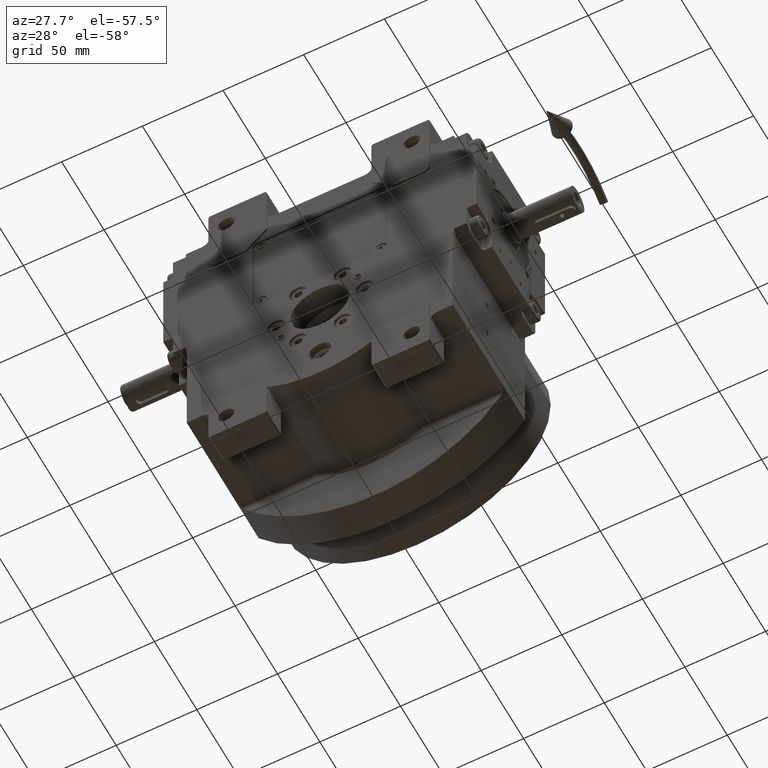
[diagram: clean part render]
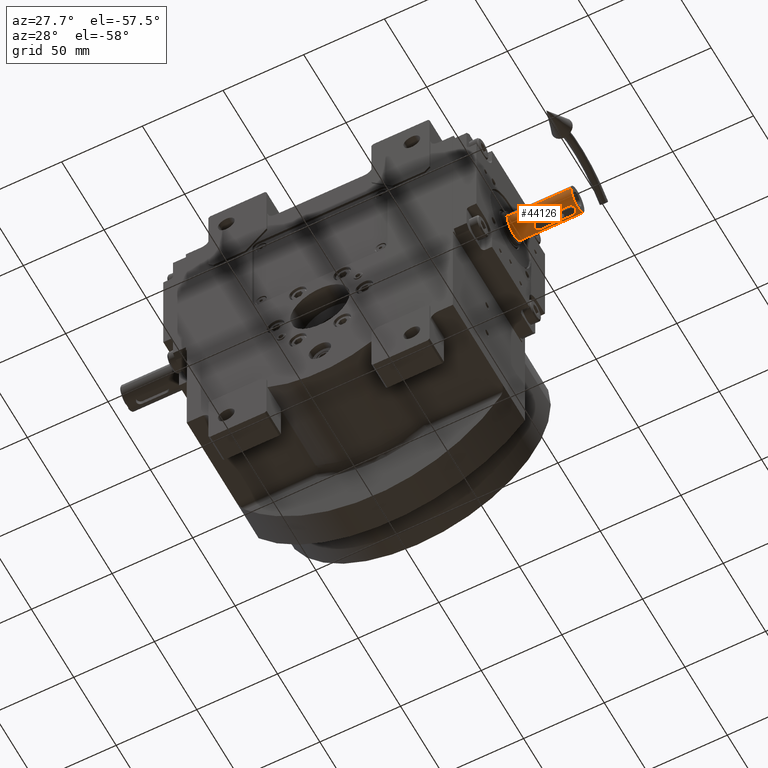
[diagram: same view with one face highlighted and labeled with its STEP entity id]
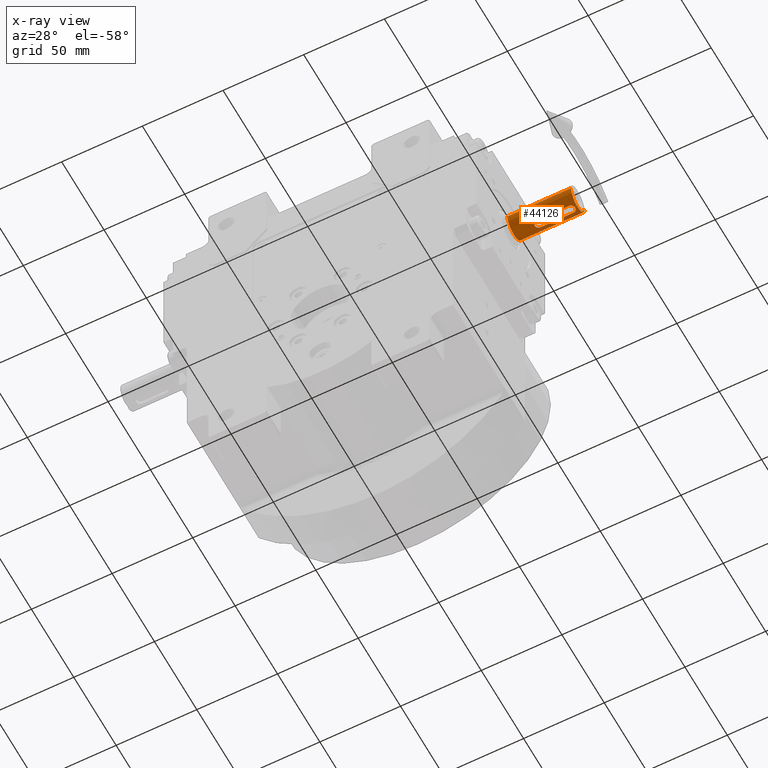
[diagram: x-ray of the same camera — body ghosted, the highlighted face saturated]
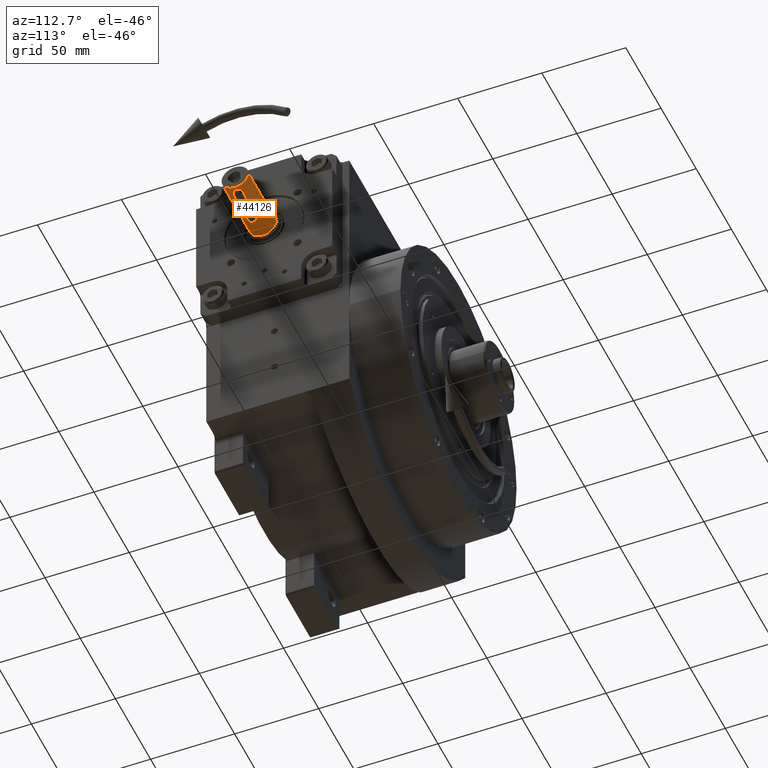
[diagram: same view with one face highlighted and labeled with its STEP entity id]
A machine part, auxiliary view. The second image highlights one B-rep face of the part: STEP entity #44126.
The next image is the same camera in x-ray: the body ghosted, the highlighted face saturated — about 0% of this face is hidden behind the body in this view.
A second angle (auxiliary view) of the same face is appended — the face is thin or edge-on in the first view.
In plain terms, the highlighted cylindrical surface (edge-blend (fillet) strip) has radius 8 mm, axis along (-1, -0, -0).
Its self-contained STEP definition (entity closure, byte-faithful):
#103 = CARTESIAN_POINT ( 'NONE',  ( -1.193536086755146552, -79.29726996681930018, 7.910995325772347542 ) ) ;
#475 = CARTESIAN_POINT ( 'NONE',  ( -2.281394066029696521, -80.47752146100458503, 7.667699380447078994 ) ) ;
#568 = LINE ( 'NONE', #60715, #8069 ) ;
#1038 = CARTESIAN_POINT ( 'NONE',  ( 1.693420889178526734, -103.3392869773679195, 7.818701621006993285 ) ) ;
#1438 = VECTOR ( 'NONE', #19400, 1000.000000000000000 ) ;
#1526 = CARTESIAN_POINT ( 'NONE',  ( -1.674829783585233711, -79.64377826720813403, 7.822663933521255331 ) ) ;
#3261 = CARTESIAN_POINT ( 'NONE',  ( 4.385751536967839378E-11, -103.9999999999955804, 7.999999999999861444 ) ) ;
#3602 = CARTESIAN_POINT ( 'NONE',  ( -8.000000000000000000, -105.4999999999999858, 4.718447854656915297E-13 ) ) ;
#4119 = CARTESIAN_POINT ( 'NONE',  ( 0.9672227922674325740, -79.19468146776318918, 7.941279732590558638 ) ) ;
#4130 = CARTESIAN_POINT ( 'NONE',  ( -2.082829102350947537, -102.8850916564722979, 7.725106330460701720 ) ) ;
#4233 = CIRCLE ( 'NONE', #61738, 8.000000000000000000 ) ;
#4459 = CARTESIAN_POINT ( 'NONE',  ( 1.103304673860914242, -79.25635695696503547, 7.923293706110199786 ) ) ;
#4471 = CARTESIAN_POINT ( 'NONE',  ( -1.786310813231841266, -103.2492233111073290, 7.798083872374340864 ) ) ;
#4543 = CARTESIAN_POINT ( 'NONE',  ( 2.499999999999940936, -81.49999999999998579, 7.599342076785330136 ) ) ;
#4822 = CARTESIAN_POINT ( 'NONE',  ( 1.469426811532487331, -79.47087880693784712, 7.864377077441826458 ) ) ;
#5033 = CARTESIAN_POINT ( 'NONE',  ( 0.9256327576328476914, -103.8223708385404223, 7.946252027353327030 ) ) ;
#5395 = CARTESIAN_POINT ( 'NONE',  ( 2.281394072897048986, -102.5224785235288039, 7.667699372738709940 ) ) ;
#5526 = CARTESIAN_POINT ( 'NONE',  ( -0.9571700192519240202, -79.19048951727212682, 7.942501018822831327 ) ) ;
#6088 = CARTESIAN_POINT ( 'NONE',  ( 0.9571699627064931271, -103.8095105061650685, 7.942501022636291097 ) ) ;
#6457 = CARTESIAN_POINT ( 'NONE',  ( 0.8205494057223792215, -103.8621775848404809, 7.957928993530587469 ) ) ;
#6944 = CARTESIAN_POINT ( 'NONE',  ( -8.881784197000859865E-16, -66.09999999999999432, 0.000000000000000000 ) ) ;
#8069 = VECTOR ( 'NONE', #66103, 1000.000000000000000 ) ;
#8242 = LINE ( 'NONE', #52181, #1438 ) ;
#9175 = CARTESIAN_POINT ( 'NONE',  ( -2.032618819128723331, -102.9586770806716061, 7.738482214712814944 ) ) ;
#9521 = CARTESIAN_POINT ( 'NONE',  ( 1.943922035151667060, -79.92726777720167775, 7.760753477608757223 ) ) ;
#9888 = CARTESIAN_POINT ( 'NONE',  ( 0.9654889590629880392, -79.19395140777740494, 7.941492741751970286 ) ) ;
#10234 = CARTESIAN_POINT ( 'NONE',  ( 2.433768593788085077, -80.92250430396407523, 7.621939950903770189 ) ) ;
#10249 = CARTESIAN_POINT ( 'NONE',  ( -1.860789053244774394, -103.1697712729408067, 7.780784497345397455 ) ) ;
#10659 = ORIENTED_EDGE ( 'NONE', *, *, #30567, .T. ) ;
#10951 = CARTESIAN_POINT ( 'NONE',  ( 2.316189119986132194, -80.55910011815062433, 7.657166291048785212 ) ) ;
#11300 = DIRECTION ( 'NONE',  ( 1.000000000000000000, 0.000000000000000000, -7.549516567451064475E-15 ) ) ;
#12000 = CARTESIAN_POINT ( 'NONE',  ( -2.168659579177117269, -80.25357648016696999, 7.701311984265567290 ) ) ;
#12341 = VERTEX_POINT ( 'NONE', #3602 ) ;
#12359 = CARTESIAN_POINT ( 'NONE',  ( -8.000000000000058620, -66.09999999999999432, 3.480229993080286022E-09 ) ) ;
#12418 = EDGE_CURVE ( 'NONE', #58932, #30668, #38431, .T. ) ;
#13088 = VERTEX_POINT ( 'NONE', #69321 ) ;
#14924 = CARTESIAN_POINT ( 'NONE',  ( -2.500000000000059064, -101.5000000000000000, 7.599342076785330136 ) ) ;
#15270 = CARTESIAN_POINT ( 'NONE',  ( 1.786310771109922646, -79.75077664594313376, 7.798083882303000536 ) ) ;
#15641 = CARTESIAN_POINT ( 'NONE',  ( 2.378121920320453331, -80.72788381417946368, 7.638611844260635664 ) ) ;
#15653 = CARTESIAN_POINT ( 'NONE',  ( -0.6420507535615088690, -103.9406460026054617, 7.980698606383389127 ) ) ;
#15982 = CARTESIAN_POINT ( 'NONE',  ( 2.482707356171685031, -81.16371504373712753, 7.606916456933628723 ) ) ;
#16193 = CARTESIAN_POINT ( 'NONE',  ( 2.249329146587029982, -102.5916207879226505, 7.677433120866432148 ) ) ;
#16326 = CARTESIAN_POINT ( 'NONE',  ( 1.073217807602770524, -79.24185413649863108, 7.927505834357019054 ) ) ;
#16549 = CARTESIAN_POINT ( 'NONE',  ( 1.472239342304378695, -103.5226722468600116, 7.863100564355688604 ) ) ;
#16694 = CARTESIAN_POINT ( 'NONE',  ( -1.582158772954930459, -79.56378034752201245, 7.841748874047701712 ) ) ;
#16902 = CARTESIAN_POINT ( 'NONE',  ( 2.262901976323559161, -102.5630896637919705, 7.673319054273621376 ) ) ;
#17043 = CARTESIAN_POINT ( 'NONE',  ( -2.500000000000057732, -81.16084879098656302, 7.602765040137517971 ) ) ;
#17601 = CARTESIAN_POINT ( 'NONE',  ( 2.430346878768983032, -102.1663473157102686, 7.622796429069606639 ) ) ;
#18613 = CIRCLE ( 'NONE', #34741, 8.000000000000000000 ) ;
#19400 = DIRECTION ( 'NONE',  ( 4.190823558986625216E-31, -1.000000000000000000, -8.381647117973250432E-31 ) ) ;
#19971 = CARTESIAN_POINT ( 'NONE',  ( -1.262573481225518268, -103.6592927539918207, 7.899329246347272182 ) ) ;
#20333 = CARTESIAN_POINT ( 'NONE',  ( -2.359042043660062316, -102.3292874808928730, 7.644314101199695344 ) ) ;
#20677 = CARTESIAN_POINT ( 'NONE',  ( -1.029707664918057208, -103.7781476961735336, 7.933340056381185335 ) ) ;
#21397 = CARTESIAN_POINT ( 'NONE',  ( -0.9505549066143478276, -79.18775555938861999, 7.943297617279680978 ) ) ;
#21597 = CARTESIAN_POINT ( 'NONE',  ( 1.924781711887133984, -103.1107540319521405, 7.766715037473525207 ) ) ;
#21731 = CARTESIAN_POINT ( 'NONE',  ( 2.268657162229624991, -80.44451192643947479, 7.671471542138300848 ) ) ;
#22070 = CARTESIAN_POINT ( 'NONE',  ( -1.400394583862462961, -79.42743347347918359, 7.876043153365933414 ) ) ;
#22295 = CARTESIAN_POINT ( 'NONE',  ( 0.5583251389089862737, -103.9382416998807912, 7.980698606350797419 ) ) ;
#22802 = FACE_BOUND ( 'NONE', #70069, .T. ) ;
#22995 = CARTESIAN_POINT ( 'NONE',  ( 0.1561144705904800034, -104.0000000000000426, 7.999999999999721112 ) ) ;
#23113 = CARTESIAN_POINT ( 'NONE',  ( 1.619150600551501284, -103.4054676677428688, 7.834308685338374545 ) ) ;
#23492 = CARTESIAN_POINT ( 'NONE',  ( -1.693420934586983728, -79.66071306435800636, 7.818701610350914599 ) ) ;
#25095 = LINE ( 'NONE', #30160, #45964 ) ;
#25168 = CARTESIAN_POINT ( 'NONE',  ( -2.500000000000059064, -101.5000000000000000, 7.599342076785330136 ) ) ;
#25377 = CARTESIAN_POINT ( 'NONE',  ( -0.9672228224972546640, -103.8053185195523014, 7.941279730866205533 ) ) ;
#25737 = CARTESIAN_POINT ( 'NONE',  ( -1.843069743752224099, -103.1893236906983304, 7.784956258549314612 ) ) ;
#26090 = CARTESIAN_POINT ( 'NONE',  ( -0.6391695085848929647, -79.08162164491187696, 7.974670843423046662 ) ) ;
#26434 = CARTESIAN_POINT ( 'NONE',  ( -0.7601371585158862576, -79.11799152341782815, 7.963812738570663186 ) ) ;
#26443 = CARTESIAN_POINT ( 'NONE',  ( -1.196502426440146927, -103.6961883285299848, 7.909689382643857236 ) ) ;
#26800 = CARTESIAN_POINT ( 'NONE',  ( -2.500000000000056843, -101.6695345930383922, 7.601053091262475192 ) ) ;
#27488 = CARTESIAN_POINT ( 'NONE',  ( 1.008357150952980064, -79.21228962897187387, 7.936136175550116079 ) ) ;
#27694 = CARTESIAN_POINT ( 'NONE',  ( 2.499999999999940936, -101.5000000000000000, 7.599342076785330136 ) ) ;
#27830 = CARTESIAN_POINT ( 'NONE',  ( -2.306742151783229833, -80.53617158843385937, 7.660008567906841925 ) ) ;
#28057 = CARTESIAN_POINT ( 'NONE',  ( 2.306742137515195967, -102.4638284456816137, 7.660008568000876039 ) ) ;
#28099 = VERTEX_POINT ( 'NONE', #48659 ) ;
#28421 = CARTESIAN_POINT ( 'NONE',  ( 1.748128468984884387, -103.2874052071413615, 7.806733652958830483 ) ) ;
#28563 = FACE_OUTER_BOUND ( 'NONE', #29496, .T. ) ;
#29420 = ORIENTED_EDGE ( 'NONE', *, *, #12418, .F. ) ;
#29496 = EDGE_LOOP ( 'NONE', ( #10659, #54955, #63411, #58919 ) ) ;
#30160 = CARTESIAN_POINT ( 'NONE',  ( 7.999999999999941380, -66.09999999999999432, 0.000000000000000000 ) ) ;
#30567 = EDGE_CURVE ( 'NONE', #57959, #12341, #568, .T. ) ;
#30668 = VERTEX_POINT ( 'NONE', #68604 ) ;
#31158 = CARTESIAN_POINT ( 'NONE',  ( -1.943922020714325072, -103.0727322403290032, 7.760753481466689863 ) ) ;
#31521 = CARTESIAN_POINT ( 'NONE',  ( -2.211639328035646113, -102.6769772081063223, 7.689393558455803301 ) ) ;
#31867 = CARTESIAN_POINT ( 'NONE',  ( 0.6420978377273386384, -79.05937359642163642, 7.980692895796773101 ) ) ;
#31878 = CARTESIAN_POINT ( 'NONE',  ( -1.912125993829055792, -103.1113541516930212, 7.768545143780600348 ) ) ;
#31940 = CARTESIAN_POINT ( 'NONE',  ( -2.500000000000059064, -81.49999999999998579, 7.599342076785330136 ) ) ;
#32210 = CARTESIAN_POINT ( 'NONE',  ( 1.860789045275194065, -79.83022871806322485, 7.780784499347880967 ) ) ;
#32922 = CARTESIAN_POINT ( 'NONE',  ( -0.8906645423323646948, -79.16386607656249907, 7.950277459945179537 ) ) ;
#33120 = CARTESIAN_POINT ( 'NONE',  ( 1.400394581815527451, -103.5725665278173153, 7.876043154077078334 ) ) ;
#33265 = CARTESIAN_POINT ( 'NONE',  ( -2.299652578068977160, -80.51934854338620084, 7.662151317218252267 ) ) ;
#33477 = VERTEX_POINT ( 'NONE', #25168 ) ;
#33690 = ORIENTED_EDGE ( 'NONE', *, *, #49483, .F. ) ;
#33995 = CARTESIAN_POINT ( 'NONE',  ( -2.500000000000059064, -81.49999999999998579, 7.599342076785330136 ) ) ;
#34345 = CARTESIAN_POINT ( 'NONE',  ( -2.204339293450602533, -80.31874706351443649, 7.690878176541283473 ) ) ;
#34741 = AXIS2_PLACEMENT_3D ( 'NONE', #49918, #50957, #66807 ) ;
#34770 = CARTESIAN_POINT ( 'NONE',  ( 8.000000000000000000, -105.4999999999999858, 0.000000000000000000 ) ) ;
#37272 = CARTESIAN_POINT ( 'NONE',  ( -0.3122289411811399740, -104.0000000000000000, 7.999999999999714007 ) ) ;
#37621 = CARTESIAN_POINT ( 'NONE',  ( 2.321781611066197737, -80.57290622878713293, 7.655485258560554840 ) ) ;
#37958 = CARTESIAN_POINT ( 'NONE',  ( 0.3121782513797797809, -79.00000002186203574, 7.999994292076687330 ) ) ;
#37970 = CARTESIAN_POINT ( 'NONE',  ( -2.482707383844117377, -101.8362847497630810, 7.606916429779082556 ) ) ;
#38030 = LINE ( 'NONE', #31940, #60986 ) ;
#38165 = CARTESIAN_POINT ( 'NONE',  ( 2.499999999999941824, -101.8391516377785280, 7.602765096812797552 ) ) ;
#38298 = CARTESIAN_POINT ( 'NONE',  ( -0.5582878383232166009, -79.06174975841844343, 7.980702886066490365 ) ) ;
#38431 = B_SPLINE_CURVE_WITH_KNOTS ( 'NONE', 3,
 ( #3261, #22995, #65524, #22295, #61548, #50389, #6457, #55090, #5033, #39593, #38878, #6088, #49335, #43925, #33120, #16549, #66236, #23113, #70919, #1038, #55448, #28421, #21597, #43573, #44963, #48994, #16193, #16902, #5395, #66925, #44283, #60831, #54389, #28057, #17601, #38165, #27694 ),
 .UNSPECIFIED., .F., .F.,
 ( 4, 2, 2, 1, 1, 1, 2, 2, 2, 2, 2, 2, 2, 2, 2, 2, 1, 1, 2, 2, 4 ),
 ( 0.5000000000000000000, 0.5625000000000380806, 0.5937500000000571765, 0.6093750000000667244, 0.6171875000000706102, 0.6210937500000716094, 0.6230468750000721645, 0.6250000000000726086, 0.6875000000000647260, 0.7187500000000593969, 0.7343750000000566214, 0.7421875000000538458, 0.7500000000000510703, 0.8125000000000206501, 0.8437500000000053291, 0.8593749999999977796, 0.8671874999999940048, 0.8710937499999955591, 0.8730468750000000000, 0.8750000000000044409, 1.000000000000000000 ),
 .UNSPECIFIED. ) ;
#38448 = ORIENTED_EDGE ( 'NONE', *, *, #51184, .F. ) ;
#38676 = CARTESIAN_POINT ( 'NONE',  ( -2.039842226443633777, -80.04546655734041849, 7.737024747556470849 ) ) ;
#38878 = CARTESIAN_POINT ( 'NONE',  ( 0.9505563138213262153, -103.8122438603152915, 7.943297443901697008 ) ) ;
#39020 = DIRECTION ( 'NONE',  ( -7.124400050277262868E-30, -1.000000000000000000, 1.002546245711064011E-15 ) ) ;
#39593 = CARTESIAN_POINT ( 'NONE',  ( 0.9405903361060233836, -103.8163157804874857, 7.944484931987523701 ) ) ;
#39735 = CARTESIAN_POINT ( 'NONE',  ( -1.924781681136906286, -79.88924594813119029, 7.766715043241154248 ) ) ;
#41965 = CARTESIAN_POINT ( 'NONE',  ( -1.806370105743889232, -103.2285102410354085, 7.793483734321799083 ) ) ;
#42315 = CARTESIAN_POINT ( 'NONE',  ( -0.9739860630258384555, -103.8024692427873532, 7.940448518515797360 ) ) ;
#42658 = CARTESIAN_POINT ( 'NONE',  ( 1.029707647488325106, -79.22185229593098654, 7.933340056805964657 ) ) ;
#43370 = CARTESIAN_POINT ( 'NONE',  ( 2.309893421232844357, -80.54375579039782451, 7.659059943619900501 ) ) ;
#43573 = CARTESIAN_POINT ( 'NONE',  ( 2.039842285281532330, -102.9545333609491138, 7.737024730599114442 ) ) ;
#43707 = CARTESIAN_POINT ( 'NONE',  ( 2.211639362258282393, -80.32302285553738841, 7.689393544937226821 ) ) ;
#43925 = CARTESIAN_POINT ( 'NONE',  ( 1.193536090284764928, -103.7027300309425897, 7.910995323808532653 ) ) ;
#44058 = CARTESIAN_POINT ( 'NONE',  ( -1.472239351285107745, -79.47732775901590685, 7.863100561985568504 ) ) ;
#44126 = ADVANCED_FACE ( 'NONE', ( #28563, #22802 ), #61693, .T. ) ;
#44283 = CARTESIAN_POINT ( 'NONE',  ( 2.299652570020702225, -102.4806514754110225, 7.662151314881134212 ) ) ;
#44772 = CARTESIAN_POINT ( 'NONE',  ( -1.748128541432752092, -79.71259486395136662, 7.806733636063513337 ) ) ;
#44783 = CARTESIAN_POINT ( 'NONE',  ( 2.619264724366640760E-29, -65.50000000000000000, 0.000000000000000000 ) ) ;
#44963 = CARTESIAN_POINT ( 'NONE',  ( 2.168659634716342488, -102.7464234234344218, 7.701311963956277928 ) ) ;
#45481 = CARTESIAN_POINT ( 'NONE',  ( -2.290173002686680004, -80.49728124111595662, 7.665027391958676439 ) ) ;
#45705 = AXIS2_PLACEMENT_3D ( 'NONE', #44783, #50535, #55950 ) ;
#45820 = CARTESIAN_POINT ( 'NONE',  ( -2.303557479101951966, -80.52859177676407398, 7.660970409150075433 ) ) ;
#45964 = VECTOR ( 'NONE', #46354, 1000.000000000000000 ) ;
#46354 = DIRECTION ( 'NONE',  ( 4.190823558986625216E-31, -1.000000000000000000, -8.381647117973250432E-31 ) ) ;
#47248 = B_SPLINE_CURVE_WITH_KNOTS ( 'NONE', 3,
 ( #14924, #26800, #37970, #48426, #47721, #58871, #20333, #48076, #54179, #53112, #64619, #48792, #59928, #31521, #4130, #9175, #31158, #31878, #10249, #25737, #41965, #4471, #70004, #69292, #19971, #26443, #69663, #65333, #20677, #63909, #70365, #42315, #25377, #64984, #15653, #37272, #70725 ),
 .UNSPECIFIED., .F., .F.,
 ( 4, 2, 2, 1, 1, 1, 2, 2, 2, 2, 2, 2, 2, 2, 2, 2, 1, 1, 2, 2, 4 ),
 ( 0.000000000000000000, 0.06250000000001104672, 0.09375000000001915135, 0.1093750000000206501, 0.1171875000000188183, 0.1210937500000179162, 0.1230468750000174583, 0.1250000000000169864, 0.1875000000000399680, 0.2187500000000514588, 0.2343750000000572042, 0.2421875000000600631, 0.2500000000000629496, 0.3125000000000860978, 0.3437500000000963118, 0.3593750000001000311, 0.3671875000001005307, 0.3710937500000994205, 0.3730468750000987543, 0.3750000000000980882, 0.5000000000000000000 ),
 .UNSPECIFIED. ) ;
#47721 = CARTESIAN_POINT ( 'NONE',  ( -2.413631302826452441, -102.1564244269221859, 7.627985835901052170 ) ) ;
#48067 = CARTESIAN_POINT ( 'NONE',  ( 2.082829138399822089, -80.11490839759532889, 7.725106319125408127 ) ) ;
#48076 = CARTESIAN_POINT ( 'NONE',  ( -2.334563050082431257, -102.3947116797433949, 7.651647996439761457 ) ) ;
#48415 = CARTESIAN_POINT ( 'NONE',  ( -0.8205310525004911870, -79.13781588510423148, 7.957931175922663414 ) ) ;
#48426 = CARTESIAN_POINT ( 'NONE',  ( -2.433768643298957368, -102.0774954870596787, 7.621939923613164858 ) ) ;
#48659 = CARTESIAN_POINT ( 'NONE',  ( 7.999999999999941380, -66.09999999999999432, -3.480229993080286022E-09 ) ) ;
#48779 = CARTESIAN_POINT ( 'NONE',  ( 1.619322386118695389, -79.58379023461479562, 7.835913286343745732 ) ) ;
#48792 = CARTESIAN_POINT ( 'NONE',  ( -2.309893432402037039, -102.4562441826294616, 7.659059942767492579 ) ) ;
#48994 = CARTESIAN_POINT ( 'NONE',  ( 2.204339340298139049, -102.6812528476400956, 7.690878157353458811 ) ) ;
#49136 = CARTESIAN_POINT ( 'NONE',  ( 2.499999999999940936, -81.49999999999998579, 7.599342076785330136 ) ) ;
#49335 = CARTESIAN_POINT ( 'NONE',  ( 1.067508222952346708, -103.7635937273605720, 7.929129304385885035 ) ) ;
#49396 = EDGE_CURVE ( 'NONE', #28099, #56469, #25095, .T. ) ;
#49469 = CARTESIAN_POINT ( 'NONE',  ( -1.067508236372652464, -79.23640628122828389, 7.929129305063745470 ) ) ;
#49483 = EDGE_CURVE ( 'NONE', #13088, #33477, #38030, .T. ) ;
#49548 = DIRECTION ( 'NONE',  ( 4.190823558986625216E-31, -1.000000000000000000, -8.381647117973250432E-31 ) ) ;
#49825 = CARTESIAN_POINT ( 'NONE',  ( -2.262901956743316401, -80.43691029397636783, 7.673319066181264247 ) ) ;
#49918 = CARTESIAN_POINT ( 'NONE',  ( 8.881784196984481141E-16, -105.4999999999999858, 4.718447854656915297E-13 ) ) ;
#50389 = CARTESIAN_POINT ( 'NONE',  ( 0.7601614020288258722, -103.8820006834997116, 7.963809886907988300 ) ) ;
#50535 = DIRECTION ( 'NONE',  ( -4.190823558986625216E-31, 1.000000000000000000, 8.381647117973250432E-31 ) ) ;
#50620 = CARTESIAN_POINT ( 'NONE',  ( 4.385751536967839378E-11, -103.9999999999955804, 7.999999999999861444 ) ) ;
#50844 = EDGE_CURVE ( 'NONE', #56469, #12341, #18613, .T. ) ;
#50867 = CARTESIAN_POINT ( 'NONE',  ( -2.249329119355333084, -80.40837915558016391, 7.677433135013888688 ) ) ;
#50957 = DIRECTION ( 'NONE',  ( 4.190823558986625216E-31, -1.000000000000000000, -8.381647117973250432E-31 ) ) ;
#51184 = EDGE_CURVE ( 'NONE', #55005, #13088, #61292, .T. ) ;
#51772 = EDGE_CURVE ( 'NONE', #55005, #30668, #8242, .T. ) ;
#52181 = CARTESIAN_POINT ( 'NONE',  ( 2.499999999999940936, -81.49999999999998579, 7.599342076785330136 ) ) ;
#53112 = CARTESIAN_POINT ( 'NONE',  ( -2.316189136086669986, -102.4408998422357655, 7.657166288312000191 ) ) ;
#53456 = CARTESIAN_POINT ( 'NONE',  ( 0.9841849079011135704, -79.20185371595601964, 7.939186577244390364 ) ) ;
#53812 = CARTESIAN_POINT ( 'NONE',  ( -0.1560888630750188188, -78.99999998906895371, 8.000002853960394233 ) ) ;
#54166 = CARTESIAN_POINT ( 'NONE',  ( 1.806370080199162453, -79.77148973213682837, 7.793483740494735912 ) ) ;
#54179 = CARTESIAN_POINT ( 'NONE',  ( -2.321781631207963326, -102.4270937209118841, 7.655485254225476766 ) ) ;
#54389 = CARTESIAN_POINT ( 'NONE',  ( 2.306126288175583738, -102.4652940166914163, 7.660194624968021948 ) ) ;
#54895 = CARTESIAN_POINT ( 'NONE',  ( 2.413631249271974699, -80.84357537995785492, 7.627985860989254796 ) ) ;
#54955 = ORIENTED_EDGE ( 'NONE', *, *, #50844, .F. ) ;
#55005 = VERTEX_POINT ( 'NONE', #4543 ) ;
#55090 = CARTESIAN_POINT ( 'NONE',  ( 0.8906742496777767526, -103.8361301771416834, 7.950276292533057898 ) ) ;
#55448 = CARTESIAN_POINT ( 'NONE',  ( 1.730604303250876663, -103.3043446562646608, 7.810615493049333224 ) ) ;
#55944 = CARTESIAN_POINT ( 'NONE',  ( -2.306126302292638819, -80.53470601702332488, 7.660194624969514976 ) ) ;
#55950 = DIRECTION ( 'NONE',  ( 1.000000000000000000, 0.000000000000000000, -7.549516567451064475E-15 ) ) ;
#56469 = VERTEX_POINT ( 'NONE', #34770 ) ;
#57959 = VERTEX_POINT ( 'NONE', #12359 ) ;
#58041 = EDGE_CURVE ( 'NONE', #28099, #57959, #4233, .T. ) ;
#58858 = CARTESIAN_POINT ( 'NONE',  ( -0.3163611264302951809, -79.01466021605666867, 7.995178932222382961 ) ) ;
#58871 = CARTESIAN_POINT ( 'NONE',  ( -2.378121968122607566, -102.2721160393968205, 7.638611825847679171 ) ) ;
#58919 = ORIENTED_EDGE ( 'NONE', *, *, #58041, .T. ) ;
#58932 = VERTEX_POINT ( 'NONE', #50620 ) ;
#59225 = CARTESIAN_POINT ( 'NONE',  ( 1.262573484231568566, -79.34070724783293826, 7.899329245348409856 ) ) ;
#59579 = CARTESIAN_POINT ( 'NONE',  ( 1.912126000616588550, -79.88864585588558498, 7.768545142054663621 ) ) ;
#59916 = CARTESIAN_POINT ( 'NONE',  ( 1.196502427732061058, -79.30381167198214598, 7.909689381527178931 ) ) ;
#59928 = CARTESIAN_POINT ( 'NONE',  ( -2.268657147672594299, -102.5554881115370307, 7.671471551454439819 ) ) ;
#60635 = CARTESIAN_POINT ( 'NONE',  ( -2.430347043750778813, -80.83365309564688062, 7.622796372071179327 ) ) ;
#60715 = CARTESIAN_POINT ( 'NONE',  ( -8.000000000000058620, -66.09999999999999432, 0.000000000000000000 ) ) ;
#60831 = CARTESIAN_POINT ( 'NONE',  ( 2.303557467424545813, -102.4714082509158573, 7.660970408203839455 ) ) ;
#60986 = VECTOR ( 'NONE', #49548, 1000.000000000000000 ) ;
#61292 = B_SPLINE_CURVE_WITH_KNOTS ( 'NONE', 3,
 ( #49136, #71056, #15982, #10234, #54895, #15641, #64606, #64974, #37621, #10951, #66016, #43370, #21731, #43707, #48067, #69993, #9521, #59579, #32210, #65654, #54166, #15270, #48779, #4822, #59225, #59916, #4459, #16326, #42658, #27488, #53456, #65322, #4119, #9888, #31867, #37958, #53812, #58858, #38298, #26090, #26434, #48415, #32922, #70353, #70714, #21397, #5526, #49469, #103, #22070, #44058, #16694, #67784, #1526, #23492, #61324, #44772, #39735, #38676, #12000, #34345, #50867, #49825, #475, #45481, #33265, #45820, #55944, #27830, #60635, #17043, #33995 ),
 .UNSPECIFIED., .F., .F.,
 ( 4, 2, 2, 1, 1, 1, 2, 2, 2, 2, 2, 2, 2, 2, 2, 2, 1, 1, 2, 2, 2, 2, 2, 1, 1, 1, 2, 2, 2, 2, 2, 2, 2, 2, 2, 2, 1, 1, 2, 2, 4 ),
 ( 0.000000000000000000, 0.06250000000000408007, 0.09375000000000870137, 0.1093750000000084655, 0.1171875000000058148, 0.1210937500000020123, 0.1230468750000000971, 0.1249999999999981820, 0.1875000000000303368, 0.2187500000000464351, 0.2343750000000544564, 0.2421875000000569544, 0.2500000000000594524, 0.3125000000000653366, 0.3437500000000668909, 0.3593750000000677236, 0.3671875000000681122, 0.3710937500000682232, 0.3730468750000682787, 0.3750000000000682787, 0.5000000000000639488, 0.5625000000000618394, 0.5937500000000601741, 0.6093750000000592859, 0.6171875000000580647, 0.6210937500000582867, 0.6230468750000583977, 0.6250000000000586198, 0.6875000000000035527, 0.7187499999999747979, 0.7343749999999603650, 0.7421874999999530376, 0.7499999999999458211, 0.8124999999998926414, 0.8437499999998659961, 0.8593749999998526734, 0.8671874999998460121, 0.8710937499998426814, 0.8730468749998445688, 0.8749999999998464562, 1.000000000000000000 ),
 .UNSPECIFIED. ) ;
#61324 = CARTESIAN_POINT ( 'NONE',  ( -1.730604356255498022, -79.69565539449078528, 7.810615480604625738 ) ) ;
#61548 = CARTESIAN_POINT ( 'NONE',  ( 0.6392033444089164629, -103.9183691897240891, 7.974666920835504769 ) ) ;
#61693 = CYLINDRICAL_SURFACE ( 'NONE', #45705, 8.000000000000000000 ) ;
#61738 = AXIS2_PLACEMENT_3D ( 'NONE', #6944, #39020, #11300 ) ;
#63320 = ORIENTED_EDGE ( 'NONE', *, *, #51772, .T. ) ;
#63411 = ORIENTED_EDGE ( 'NONE', *, *, #49396, .F. ) ;
#63909 = CARTESIAN_POINT ( 'NONE',  ( -1.008357172198626639, -103.7877103616287400, 7.936136174749787386 ) ) ;
#64606 = CARTESIAN_POINT ( 'NONE',  ( 2.359042001678981038, -80.67071240173902424, 7.644314115432113255 ) ) ;
#64619 = CARTESIAN_POINT ( 'NONE',  ( -2.312435461662472047, -102.4500878185152430, 7.658295087710902393 ) ) ;
#64974 = CARTESIAN_POINT ( 'NONE',  ( 2.334563021455914544, -80.60528824611051846, 7.651648004319799412 ) ) ;
#64984 = CARTESIAN_POINT ( 'NONE',  ( -0.9654897271027007566, -103.8060482725256861, 7.941492650600224579 ) ) ;
#65322 = CARTESIAN_POINT ( 'NONE',  ( 0.9739860343722387404, -79.19753074509037560, 7.940448520076110128 ) ) ;
#65333 = CARTESIAN_POINT ( 'NONE',  ( -1.073217818120440592, -103.7581458584323997, 7.927505834590053091 ) ) ;
#65524 = CARTESIAN_POINT ( 'NONE',  ( 0.3163992054419152433, -103.9853349339470014, 7.995174651587485748 ) ) ;
#65654 = CARTESIAN_POINT ( 'NONE',  ( 1.843069730316529986, -79.81067629450774348, 7.784956261883016815 ) ) ;
#66016 = CARTESIAN_POINT ( 'NONE',  ( 2.312435448347990974, -80.54991214909888697, 7.658295089364602681 ) ) ;
#66103 = DIRECTION ( 'NONE',  ( 4.190823558986625216E-31, -1.000000000000000000, -8.381647117973250432E-31 ) ) ;
#66236 = CARTESIAN_POINT ( 'NONE',  ( 1.582158747936832643, -103.4362196727485781, 7.841748880057250126 ) ) ;
#66807 = DIRECTION ( 'NONE',  ( 1.000000000000000000, 0.000000000000000000, -7.549516567451064475E-15 ) ) ;
#66925 = CARTESIAN_POINT ( 'NONE',  ( 2.290173002886762177, -102.5027187581402615, 7.665027386559825295 ) ) ;
#67784 = CARTESIAN_POINT ( 'NONE',  ( -1.619150631844589627, -79.59453235858264009, 7.834308677923853992 ) ) ;
#68604 = CARTESIAN_POINT ( 'NONE',  ( 2.499999999999940936, -101.5000000000000000, 7.599342076785330136 ) ) ;
#69292 = CARTESIAN_POINT ( 'NONE',  ( -1.469426813124652176, -103.5291211921943244, 7.864377076594904814 ) ) ;
#69321 = CARTESIAN_POINT ( 'NONE',  ( -2.500000000000059064, -81.49999999999998579, 7.599342076785330136 ) ) ;
#69561 = EDGE_CURVE ( 'NONE', #33477, #58932, #47248, .T. ) ;
#69663 = CARTESIAN_POINT ( 'NONE',  ( -1.103304680731170828, -103.7436430396096654, 7.923293706657421609 ) ) ;
#69993 = CARTESIAN_POINT ( 'NONE',  ( 2.032618850961139145, -80.04132296233068189, 7.738482205519766843 ) ) ;
#70004 = CARTESIAN_POINT ( 'NONE',  ( -1.619322404274947003, -103.4162097538556822, 7.835913282276488978 ) ) ;
#70069 = EDGE_LOOP ( 'NONE', ( #63320, #29420, #70827, #33690, #38448 ) ) ;
#70353 = CARTESIAN_POINT ( 'NONE',  ( -0.9256277952045615098, -79.17762717140865902, 7.946252628734399082 ) ) ;
#70365 = CARTESIAN_POINT ( 'NONE',  ( -0.9841849342362370967, -103.7981462727568669, 7.939186575924322753 ) ) ;
#70714 = CARTESIAN_POINT ( 'NONE',  ( -0.9405874952398999289, -79.18368306412415336, 7.944485278239335813 ) ) ;
#70725 = CARTESIAN_POINT ( 'NONE',  ( 4.385751536967839378E-11, -103.9999999999955804, 7.999999999999861444 ) ) ;
#70827 = ORIENTED_EDGE ( 'NONE', *, *, #69561, .F. ) ;
#70919 = CARTESIAN_POINT ( 'NONE',  ( 1.674829741835553998, -103.3562217703935033, 7.822663943330974590 ) ) ;
#71056 = CARTESIAN_POINT ( 'NONE',  ( 2.499999999999941824, -81.33046526988002256, 7.601053109335283331 ) ) ;